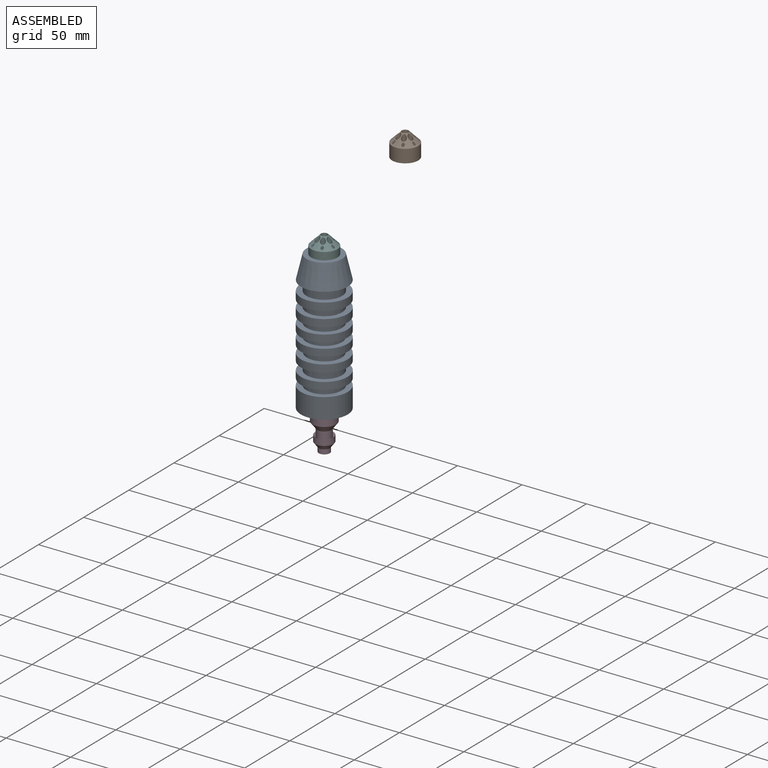
[diagram: assembled view]
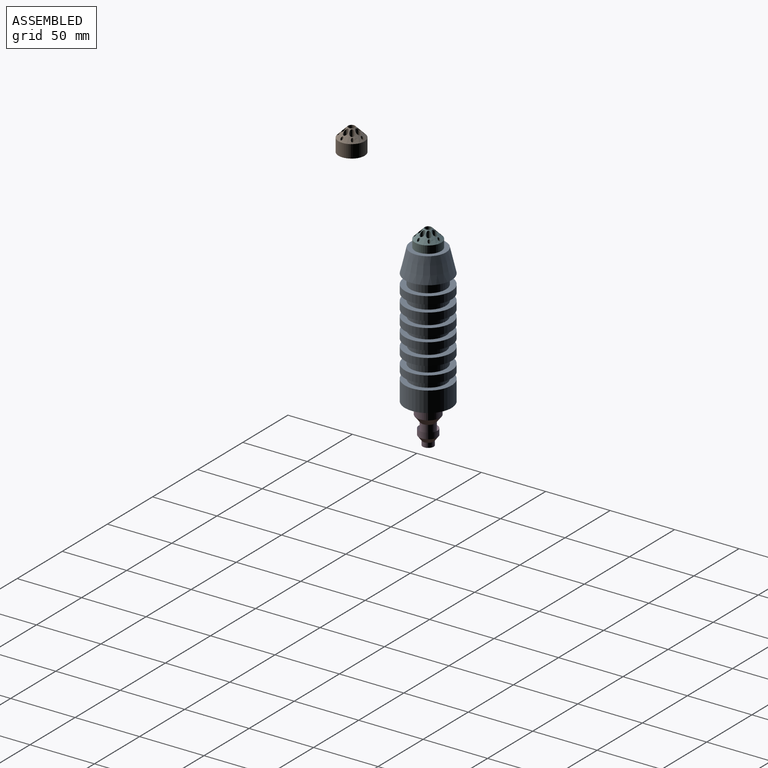
[diagram: assembled view, second angle]
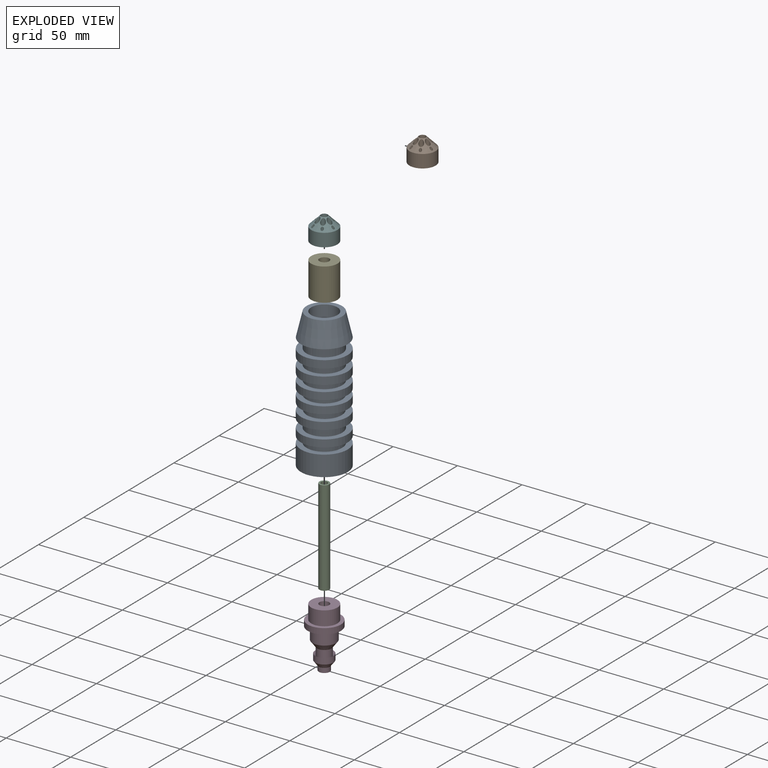
[diagram: exploded view]
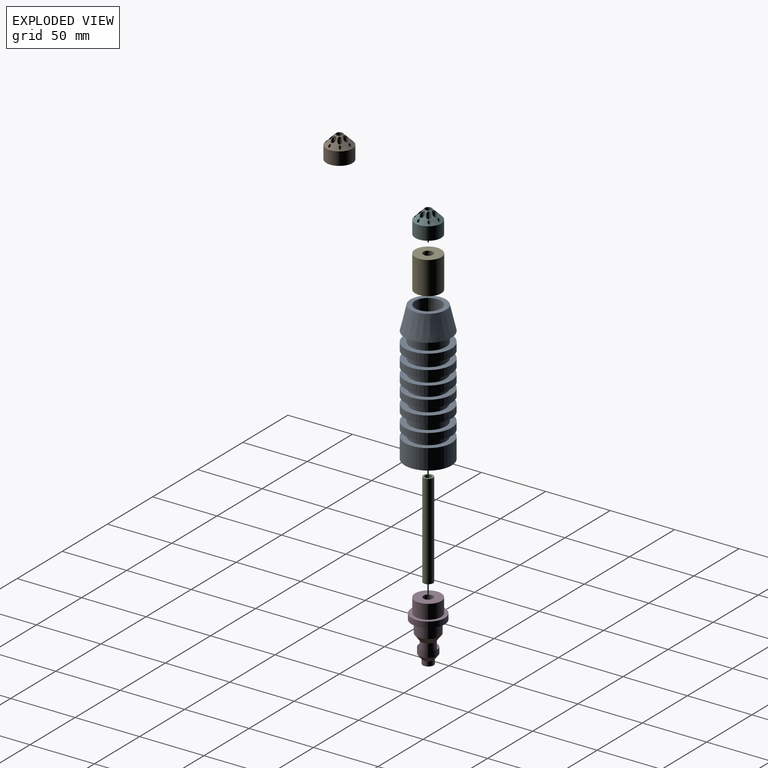
[diagram: exploded view, second angle]
ASSEMBLY  parts=6 mates=4
PART A: 32 faces, bbox 36.2x36.2x108 mm
  f0: cylinder r=13.79mm len=27.58mm, axis (0,0,-1), area 660.3mm2, adj f1,f30
  f1: plane 36.22x36.22mm, normal (0,0,-1), area 432.8mm2, adj f0,f2
  f2: cylinder r=18.11mm len=36.22mm, axis (0,0,-1), area 673.4mm2, adj f1,f3
  f3: plane 36.22x36.22mm, normal (0,0,1), area 432.8mm2, adj f2,f4
  f4: cylinder r=13.79mm len=27.58mm, axis (0,0,-1), area 483.6mm2, adj f3,f5
  f5: plane 36.22x36.22mm, normal (0,0,-1), area 432.8mm2, adj f4,f6
  f6: cylinder r=18.11mm len=36.22mm, axis (0,0,-1), area 673.4mm2, adj f5,f7
  f7: plane 36.22x36.22mm, normal (0,0,1), area 432.8mm2, adj f6,f8
  f8: cylinder r=13.79mm len=27.58mm, axis (0,0,-1), area 428.3mm2, adj f7,f9
  f9: plane 36.23x36.23mm, normal (0,0,-1), area 433.5mm2, adj f8,f10
  f10: cylinder r=18.12mm len=36.23mm, axis (0,0,-1), area 644.7mm2, adj f9,f11
  f11: plane 36.23x36.23mm, normal (0,0,1), area 432.9mm2, adj f10,f12
  f12: cylinder r=13.8mm len=27.6mm, axis (0,0,-1), area 374.4mm2, adj f11,f13
  f13: plane 36.23x36.23mm, normal (0,0,-1), area 432.9mm2, adj f12,f14
  f14: cylinder r=18.12mm len=36.23mm, axis (0,0,-1), area 644.1mm2, adj f13,f15
  f15: plane 36.23x36.23mm, normal (0,0,1), area 459.3mm2, adj f14,f16
  f16: cylinder r=13.49mm len=26.98mm, axis (0,0,-1), area 452.6mm2, adj f15,f17
  f17: plane 36.23x36.23mm, normal (0,0,-1), area 459.3mm2, adj f16,f18
  f18: cylinder r=18.12mm len=36.23mm, axis (0,0,-1), area 644.7mm2, adj f17,f19
  f19: plane 36.23x36.23mm, normal (0,0,1), area 432.9mm2, adj f18,f20
  f20: cylinder r=13.8mm len=27.6mm, axis (0,0,-1), area 571.4mm2, adj f19,f21
  f21: plane 36.23x36.23mm, normal (0,0,-1), area 432.9mm2, adj f20,f22
  f22: cylinder r=18.12mm len=36.23mm, axis (0,0,-1), area 644.7mm2, adj f21,f23
  f23: plane 36.23x36.23mm, normal (0,0,1), area 432.9mm2, adj f22,f24
  f24: cylinder r=13.8mm len=27.6mm, axis (0,0,-1), area 428.5mm2, adj f23,f25
  f25: plane 36.25x36.25mm, normal (0,0,-1), area 433.7mm2, adj f24,f26
  f26: cylinder r=18.12mm len=36.25mm, axis (0,0,-1), area 1799.7mm2, adj f25,f27
  f27: plane 36.25x36.25mm, normal (0,0,1), area 707.6mm2, adj f26,f31
  f28: plane 27.58x27.58mm, normal (0,0,-1), area 273.3mm2, adj f29,f31
  f29: cone r=18.11mm half-angle=13.3deg, axis (0,0,1), area 1887.2mm2, adj f28,f30
  f30: plane 36.22x36.22mm, normal (0,0,1), area 432.8mm2, adj f0,f29
  f31: cylinder r=10.16mm len=107.96mm, axis (0,0,-1), area 6891.6mm2, adj f27,f28
PART B: 18 faces, bbox 20.3x20.3x17.7 mm
  f0: cylinder r=10.16mm len=20.32mm, axis (0,0,-1), area 648.6mm2, adj f1,f17
  f1: plane 20.32x20.32mm, normal (0,0,-1), area 204.9mm2, adj f0,f2,f3,f4,f5,f6,f7,f8
  f2: cylinder r=1.02mm len=13.07mm, axis (0,0,1), area 77.2mm2, adj f1,f17
  f3: cylinder r=1.84mm len=17.22mm, axis (0,0,1), area 176mm2, adj f1,f17
  f4: cylinder r=1.02mm len=13.07mm, axis (0,0,1), area 77.2mm2, adj f1,f17
  f5: cylinder r=1.84mm len=17.22mm, axis (0,0,1), area 176mm2, adj f1,f17
  f6: cylinder r=2.64mm len=17.68mm, axis (0,0,1), area 293mm2, adj f1,f17
  f7: cylinder r=1.84mm len=17.22mm, axis (0,0,1), area 176mm2, adj f1,f17
  f8: cylinder r=1.02mm len=13.07mm, axis (0,0,1), area 77.2mm2, adj f1,f17
  f9: cylinder r=1.84mm len=17.22mm, axis (0,0,1), area 176mm2, adj f1,f17
  f10: cylinder r=1.02mm len=13.07mm, axis (0,0,1), area 77.2mm2, adj f1,f17
  f11: cylinder r=1.84mm len=17.22mm, axis (0,0,1), area 176mm2, adj f1,f17
  f12: cylinder r=1.02mm len=13.07mm, axis (0,0,1), area 77.2mm2, adj f1,f17
  f13: cylinder r=1.84mm len=17.22mm, axis (0,0,1), area 176mm2, adj f1,f17
  f14: cylinder r=1.02mm len=13.07mm, axis (0,0,1), area 77.2mm2, adj f1,f17
  f15: cylinder r=1.02mm len=13.07mm, axis (0,0,1), area 77.2mm2, adj f1,f17
  f16: cylinder r=1.84mm len=17.22mm, axis (0,0,1), area 176mm2, adj f1,f17
  f17: cone r=0.76mm half-angle=45deg, axis (0,0,-1), area 289.6mm2, adj f0,f2,f3,f4,f5,f6,f7,f8
PART C: 4 faces, bbox 7.6x73.9x7.6 mm
  f0: cylinder r=2.54mm len=73.91mm, axis (0,-1,0), area 1179.6mm2, adj f2,f3
  f1: cylinder r=3.81mm len=73.91mm, axis (0,-1,0), area 1769.4mm2, adj f2,f3
  f2: plane 7.62x7.62mm, normal (0,1,0), area 25.3mm2, adj f0,f1
  f3: plane 7.62x7.62mm, normal (0,-1,0), area 25.3mm2, adj f0,f1
PART D: 14 faces, bbox 25.8x25.8x46.7 mm
  f0: plane 8.57x8.57mm, normal (0,0,1), area 12mm2, adj f1,f13
  f1: cylinder r=4.28mm len=8.57mm, axis (0,0,1), area 96.5mm2, adj f0,f2
  f2: cone r=7.1mm half-angle=37.4deg, axis (0,0,-1), area 165.8mm2, adj f1,f3
  f3: cylinder r=7.1mm len=14.2mm, axis (0,0,1), area 208.6mm2, adj f2,f4
  f4: cone r=5.49mm half-angle=37.4deg, axis (0,0,-1), area 104.7mm2, adj f3,f5
  f5: cylinder r=5.49mm len=10.98mm, axis (0,0,1), area 236.4mm2, adj f4,f6
  f6: cone r=5.49mm half-angle=37.4deg, axis (0,0,-1), area 281.7mm2, adj f5,f7
  f7: cylinder r=9.2mm len=18.4mm, axis (0,0,1), area 549.5mm2, adj f6,f8
  f8: plane 25.82x25.82mm, normal (0,0,1), area 257.7mm2, adj f7,f9
  f9: cylinder r=12.91mm len=25.82mm, axis (0,0,1), area 361.5mm2, adj f8,f10
  f10: plane 25.82x25.82mm, normal (0,0,-1), area 199.5mm2, adj f9,f11
  f11: cylinder r=10.16mm len=20.32mm, axis (0,0,1), area 712.8mm2, adj f10,f12
  f12: plane 20.32x20.32mm, normal (0,0,-1), area 278.7mm2, adj f11,f13
  f13: cylinder r=3.81mm len=46.66mm, axis (0,0,-1), area 1117.1mm2, adj f0,f12
PART E: 6 faces, bbox 20.3x25.4x20.3 mm
  f0: cylinder r=10.16mm len=25.4mm, axis (0,1,0), area 1621.5mm2, adj f1,f2
  f1: plane 20.32x20.32mm, normal (0,-1,0), area 278.7mm2, adj f0,f5
  f2: plane 20.32x20.32mm, normal (0,1,0), area 52.8mm2, adj f0,f3
  f3: cylinder r=9.3mm len=18.59mm, axis (0,1,0), area 356.1mm2, adj f2,f4
  f4: plane 18.59x18.59mm, normal (0,1,0), area 225.9mm2, adj f3,f5
  f5: cylinder r=3.81mm len=19.3mm, axis (0,1,0), area 462.1mm2, adj f1,f4
PART F: same geometry as B
PLACE A rot(axis=(1,0,0),180deg) t=(-37.93,-7.61,-53.74)mm
PLACE B t=(32.12,-18.03,37.02)mm
PLACE C rot(axis=(-1,0,0),90deg) t=(-37.93,-7.61,-77.36)mm
PLACE D rot(axis=(1,0,0),180deg) t=(-37.93,-7.61,-145.9)mm
PLACE E rot(axis=(-1,0,0),90deg) t=(-37.93,-7.61,-83.45)mm
PLACE F t=(-37.93,-7.61,-58.02)mm
MATE slider E.f0 <-> F.f0  axis (0,0,-1) through (-37.93,-7.61,-70.75)mm
MATE slider A.f31 <-> E.f3  axis (0,0,1) through (-37.93,-7.61,-53.74)mm
MATE fastened A.f0 <-> D.f1  axis (0,0,1) through (-37.93,-7.61,-145.9)mm
MATE fastened C.f1 <-> E.f5  axis (0,0,1) through (-37.93,-7.61,-77.36)mm
